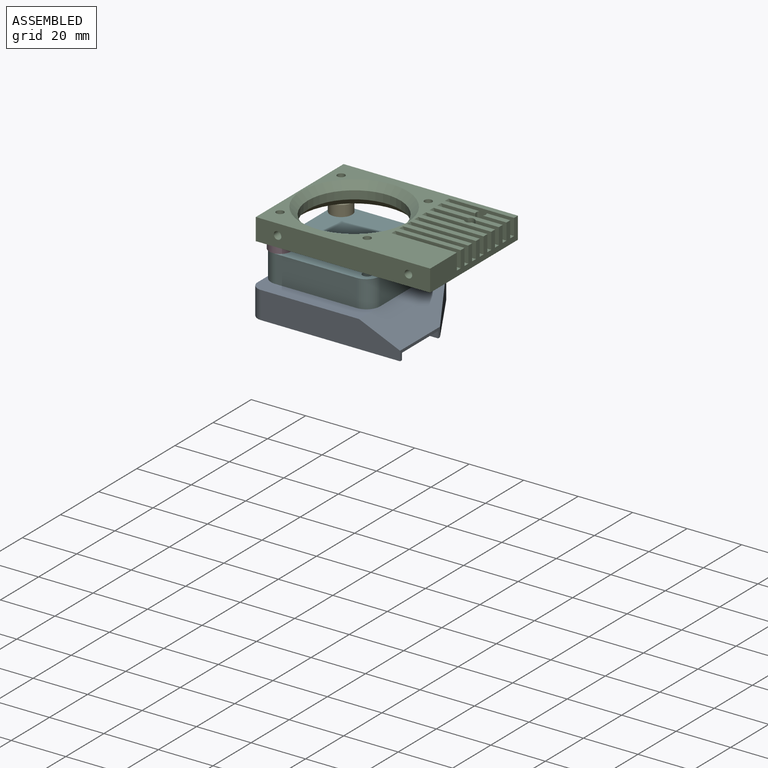
[diagram: assembled view]
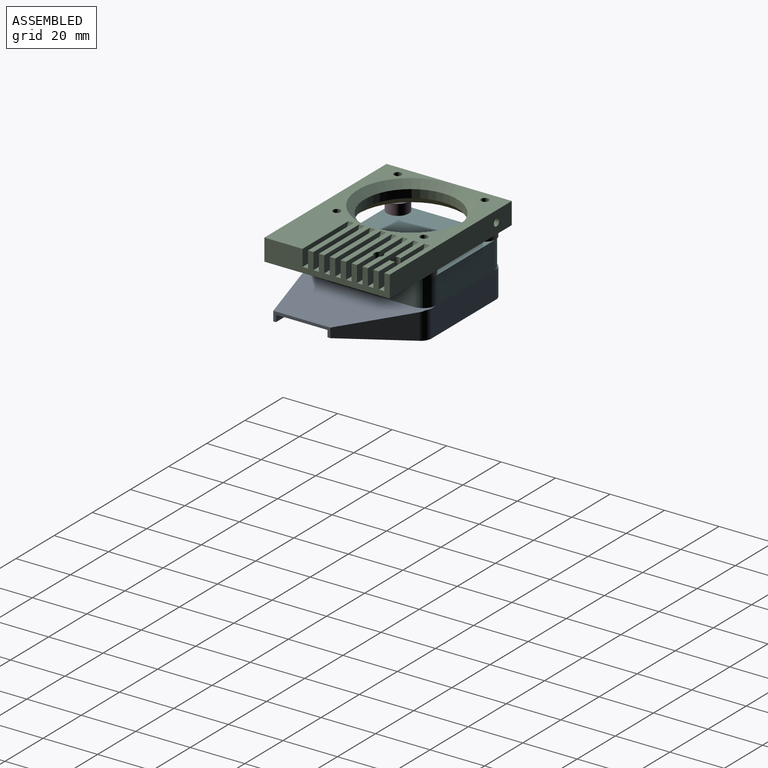
[diagram: assembled view, second angle]
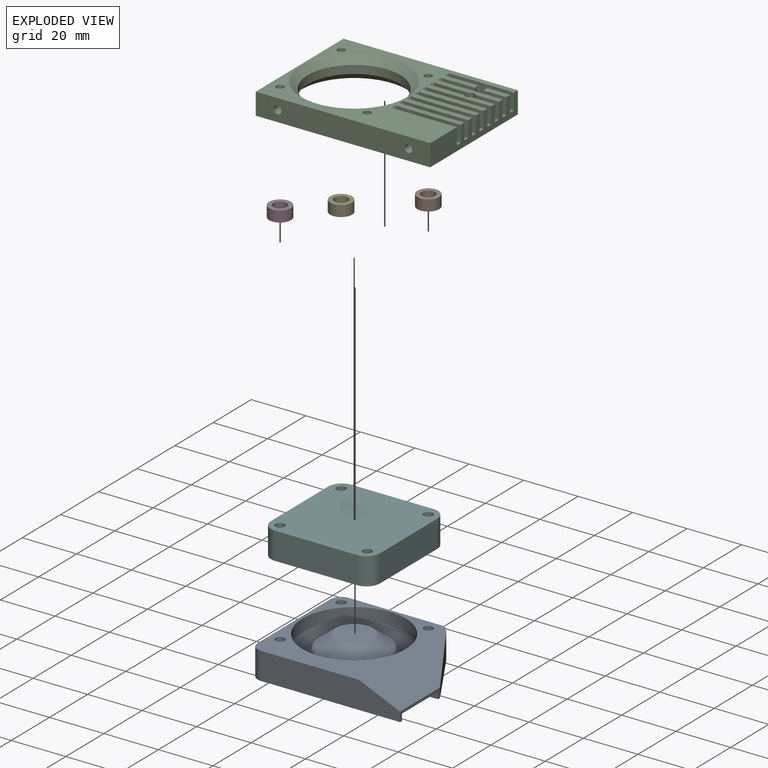
[diagram: exploded view]
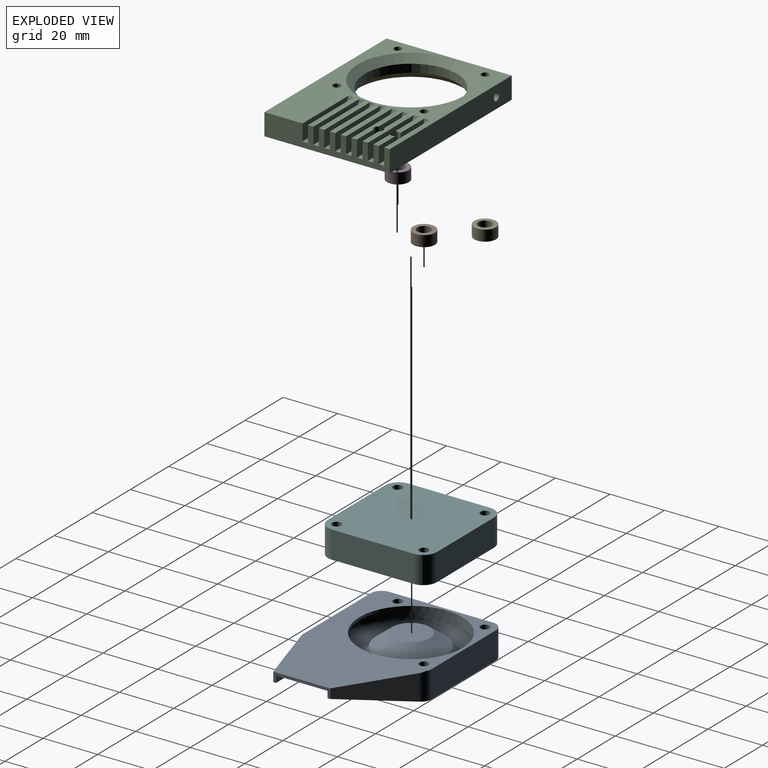
[diagram: exploded view, second angle]
ASSEMBLY  parts=6 mates=5
PART A: 43 faces, bbox 65x55.8x10.9 mm
  f0: cylinder r=1.7mm len=3.4mm, axis (0,0,1), area 19.2mm2, adj f6,f38
  f1: cylinder r=1.7mm len=3.4mm, axis (0,0,1), area 19.2mm2, adj f6,f37
  f2: cylinder r=1.7mm len=3.4mm, axis (0,0,1), area 19.2mm2, adj f6,f36
  f3: plane 20.9x3.5mm, normal (1,0,0), area 26.8mm2, adj f4,f5,f8,f13,f26,f27,f29
  f4: plane 55.06x46mm, normal (0,0,-1), area 2100.1mm2, adj f3,f5,f7,f8,f12,f27,f28,f29
  f5: plane 23.16x13.89mm, normal (0.86,0.51,0), area 175.5mm2, adj f3,f4,f13,f41
  f6: plane 46x40mm, normal (0,0,1), area 671.4mm2, adj f0,f1,f2,f7,f8,f12,f13,f16
  f7: plane 33.74x10mm, normal (0,1,0), area 337.4mm2, adj f4,f6,f40,f41
  f8: plane 51.06x10mm, normal (0,-1,0), area 461.7mm2, adj f3,f4,f6,f13,f21,f39
  f9: plane 37.82x30.19mm, normal (0,0,-1), area 232.2mm2, adj f11,f15,f16,f18,f19
  f10: plane 26.42x25.86mm, normal (0,0,1), area 292.2mm2, adj f22,f23,f25,f28,f29
  f11: plane 35.1x15.29mm, normal (-0.4,0,-0.92), area 459.9mm2, adj f9,f14,f15,f18,f22,f23,f26
  f12: plane 38x10mm, normal (-1,0,0), area 380mm2, adj f4,f6,f39,f40
  f13: plane 45.35x15.12mm, normal (0.4,0,0.92), area 548.3mm2, adj f3,f5,f6,f8,f21,f41
  f14: plane 7.13x4.65mm, normal (-0.86,-0.51,0), area 2.2mm2, adj f11,f22
  f15: plane 19.39x6mm, normal (0,1,0), area 85.8mm2, adj f9,f11,f19,f23
  f16: cylinder r=19mm len=38mm, axis (0,0,1), area 119.4mm2, adj f6,f9,f19,f20
  f17: plane 13.76x13.76mm, normal (0,0,1), area 148.8mm2, adj f42
  f18: cylinder r=43.21mm len=12.7mm, axis (0,0,-1), area 32.1mm2, adj f9,f11,f20,f22
  f19: cylinder r=50.82mm len=20.38mm, axis (0,0,-1), area 67.5mm2, adj f9,f15,f16,f20,f23
  f20: cylinder r=19mm len=34.9mm, axis (0,0,-1), area 193.5mm2, adj f16,f18,f19,f24
  f21: cylinder r=50.82mm len=0mm, axis (0,0,-1), area 0mm2, adj f8,f13
  f22: torus R=38.21mm, axis (0,0,1), area 181mm2, adj f10,f11,f14,f18,f24,f25,f26,f29
  f23: torus R=45.82mm, axis (0,0,1), area 255.7mm2, adj f10,f11,f15,f19,f24,f25,f26,f28
  f24: torus R=14mm, axis (0,0,1), area 346.9mm2, adj f20,f22,f23,f25
  f25: torus R=18.5mm, axis (0,0,1), area 580mm2, adj f10,f22,f23,f24,f42
  f26: plane 18.9x8mm, normal (0,0,-1), area 16.7mm2, adj f3,f11,f22,f23,f27,f28,f29
  f27: plane 8x2.45mm, normal (0,1,0), area 19.6mm2, adj f3,f4,f26,f28
  f28: plane 18.96x2.52mm, normal (1,0,0), area 21.9mm2, adj f4,f10,f23,f26,f27,f29
  f29: plane 8.26x2.71mm, normal (0,-1,0), area 11.5mm2, adj f3,f4,f10,f22,f26,f28
  f30: cylinder r=3mm len=8mm, axis (0,0,-1), area 150.8mm2, adj f4,f31
  f31: plane 6x6mm, normal (0,0,-1), area 28.3mm2, adj f30
  f32: cylinder r=3mm len=8mm, axis (0,0,-1), area 150.8mm2, adj f4,f33
  f33: plane 6x6mm, normal (0,0,-1), area 28.3mm2, adj f32
  f34: cylinder r=3mm len=8mm, axis (0,0,-1), area 150.8mm2, adj f4,f35
  f35: plane 6x6mm, normal (0,0,-1), area 28.3mm2, adj f34
  f36: plane 3.4x3.4mm, normal (0,0,1), area 9.1mm2, adj f2
  f37: plane 3.4x3.4mm, normal (0,0,1), area 9.1mm2, adj f1
  f38: plane 3.4x3.4mm, normal (0,0,1), area 9.1mm2, adj f0
  f39: cylinder r=4mm len=10mm, axis (0,0,-1), area 62.8mm2, adj f4,f6,f8,f12
  f40: cylinder r=4mm len=10mm, axis (0,0,1), area 62.8mm2, adj f4,f6,f7,f12
  f41: cylinder r=4mm len=10mm, axis (0,0,-1), area 40.8mm2, adj f4,f5,f6,f7,f13
  f42: cone r=6.88mm half-angle=52.2deg, axis (0,0,-1), area 451.8mm2, adj f17,f25
PART B: 4 faces, bbox 8x8x4 mm
  f0: cylinder r=2.5mm len=5mm, axis (0,0,-1), area 62.8mm2, adj f2,f3
  f1: cylinder r=4mm len=8mm, axis (0,0,-1), area 100.5mm2, adj f2,f3
  f2: plane 8x8mm, normal (0,0,1), area 30.6mm2, adj f0,f1
  f3: plane 8x8mm, normal (0,0,-1), area 30.6mm2, adj f0,f1
PART C: 63 faces, bbox 64x46x8 mm
  f0: plane 24x6mm, normal (0,-1,0), area 132mm2, adj f3,f29,f40,f48
  f1: plane 24x6mm, normal (0,1,0), area 132mm2, adj f3,f29,f39,f49
  f2: plane 24x6mm, normal (0,-1,0), area 132mm2, adj f3,f29,f39,f49
  f3: plane 46x8mm, normal (1,0,0), area 272mm2, adj f0,f1,f2,f4,f8,f9,f13,f14
  f4: plane 8.63x6mm, normal (0,1,0), area 51.8mm2, adj f3,f7,f29,f41
  f5: plane 12.63x6mm, normal (0,1,0), area 63.7mm2, adj f7,f29,f42,f50
  f6: plane 12.63x6mm, normal (0,-1,0), area 63.7mm2, adj f7,f29,f42,f50
  f7: cylinder r=1.7mm len=8mm, axis (0,0,-1), area 59.8mm2, adj f4,f5,f6,f8,f29,f30,f41,f42
  f8: plane 8.63x6mm, normal (0,-1,0), area 51.8mm2, adj f3,f7,f29,f41
  f9: plane 24x6mm, normal (0,1,0), area 132mm2, adj f3,f29,f35,f43
  f10: plane 12.63x6mm, normal (0,-1,0), area 63.7mm2, adj f11,f29,f35,f43
  f11: cylinder r=1.7mm len=8mm, axis (0,0,-1), area 47mm2, adj f10,f12,f29,f30,f31,f32,f33,f34
  f12: plane 12.63x6mm, normal (0,1,0), area 63.7mm2, adj f11,f29,f34,f44
  f13: plane 24x6mm, normal (0,-1,0), area 132mm2, adj f3,f29,f34,f44
  f14: plane 64x8mm, normal (0,1,0), area 505.8mm2, adj f3,f15,f29,f30,f57
  f15: plane 46x8mm, normal (-1,0,0), area 368mm2, adj f14,f16,f29,f30
  f16: plane 64x8mm, normal (0,-1,0), area 499.7mm2, adj f3,f15,f29,f30,f59,f61
  f17: plane 24x6mm, normal (0,1,0), area 132mm2, adj f3,f29,f37,f45
  f18: plane 24x6mm, normal (0,-1,0), area 132mm2, adj f3,f29,f37,f45
  f19: plane 24x6mm, normal (0,1,0), area 132mm2, adj f3,f29,f36,f46
  f20: plane 24x6mm, normal (0,-1,0), area 132mm2, adj f3,f29,f36,f46
  f21: plane 24x6mm, normal (0,1,0), area 132mm2, adj f3,f29,f38,f47
  f22: plane 24x6mm, normal (0,-1,0), area 132mm2, adj f3,f29,f38,f47
  f23: plane 24x6mm, normal (0,1,0), area 132mm2, adj f3,f29,f40,f48
  f24: cylinder r=1.4mm len=7.4mm, axis (0,0,-1), area 65.1mm2, adj f29,f55
  f25: cylinder r=1.4mm len=7.4mm, axis (0,0,-1), area 65.1mm2, adj f29,f56
  f26: cylinder r=1.4mm len=7.4mm, axis (0,0,-1), area 65.1mm2, adj f29,f53
  f27: cylinder r=1.4mm len=7.4mm, axis (0,0,-1), area 65.1mm2, adj f29,f54
  f28: cylinder r=17mm len=34mm, axis (0,0,-1), area 320.4mm2, adj f51,f52
  f29: plane 64x46mm, normal (0,0,1), area 1314.9mm2, adj f0,f1,f2,f3,f4,f5,f6,f7
  f30: plane 64x46mm, normal (0,0,-1), area 1681mm2, adj f3,f7,f11,f14,f15,f16,f52,f53
  f31: plane 8.63x6mm, normal (0,-1,0), area 51.8mm2, adj f3,f11,f33,f35
  f32: plane 8.63x6mm, normal (0,1,0), area 51.8mm2, adj f3,f11,f33,f34
  f33: plane 8.63x2mm, normal (0,0,1), area 16.8mm2, adj f3,f11,f31,f32
  f34: plane 16.25x2mm, normal (0,0,1), area 31.2mm2, adj f3,f11,f12,f13,f32,f44
  f35: plane 16.25x2mm, normal (0,0,1), area 31.2mm2, adj f3,f9,f10,f11,f31,f43
  f36: plane 16.25x2mm, normal (0,0,1), area 32.5mm2, adj f3,f19,f20,f46
  f37: plane 16.25x2mm, normal (0,0,1), area 32.5mm2, adj f3,f17,f18,f45
  f38: plane 16.25x2mm, normal (0,0,1), area 32.5mm2, adj f3,f21,f22,f47
  f39: plane 16.25x2mm, normal (0,0,1), area 32.5mm2, adj f1,f2,f3,f49
  f40: plane 16.25x2mm, normal (0,0,1), area 32.5mm2, adj f0,f3,f23,f48
  f41: plane 8.63x2mm, normal (0,0,1), area 16.8mm2, adj f3,f4,f7,f8
  f42: plane 4.88x2mm, normal (0,0,1), area 9.3mm2, adj f5,f6,f7,f50
  f43: cylinder r=8mm len=7.75mm, axis (0,-1,0), area 21.1mm2, adj f9,f10,f29,f35
  f44: cylinder r=8mm len=7.75mm, axis (0,-1,0), area 21.1mm2, adj f12,f13,f29,f34
  f45: cylinder r=8mm len=7.75mm, axis (0,-1,0), area 21.1mm2, adj f17,f18,f29,f37
  f46: cylinder r=8mm len=7.75mm, axis (0,-1,0), area 21.1mm2, adj f19,f20,f29,f36
  f47: cylinder r=8mm len=7.75mm, axis (0,-1,0), area 21.1mm2, adj f21,f22,f29,f38
  f48: cylinder r=8mm len=7.75mm, axis (0,-1,0), area 21.1mm2, adj f0,f23,f29,f40
  f49: cylinder r=8mm len=7.75mm, axis (0,-1,0), area 21.1mm2, adj f1,f2,f29,f39
  f50: cylinder r=8mm len=7.75mm, axis (0,-1,0), area 21.1mm2, adj f5,f6,f29,f42
  f51: cone r=17mm half-angle=45deg, axis (0,0,1), area 405.4mm2, adj f28,f29
  f52: cone r=19.5mm half-angle=45deg, axis (0,0,-1), area 405.4mm2, adj f28,f30
  f53: cone r=2mm half-angle=45deg, axis (0,0,-1), area 9.1mm2, adj f26,f30
  f54: cone r=2mm half-angle=45deg, axis (0,0,-1), area 9.1mm2, adj f27,f30
  f55: cone r=2mm half-angle=45deg, axis (0,0,-1), area 9.1mm2, adj f24,f30
  f56: cone r=2mm half-angle=45deg, axis (0,0,-1), area 9.1mm2, adj f25,f30
  f57: cylinder r=1.4mm len=8.5mm, axis (0,1,0), area 74.8mm2, adj f14,f58
  f58: plane 2.8x2.8mm, normal (0,1,0), area 6.2mm2, adj f57
  f59: cylinder r=1.4mm len=8.5mm, axis (0,-1,0), area 74.8mm2, adj f16,f60
  f60: plane 2.8x2.8mm, normal (0,-1,0), area 6.2mm2, adj f59
  f61: cylinder r=1.4mm len=8.5mm, axis (0,-1,0), area 74.8mm2, adj f16,f62
  f62: plane 2.8x2.8mm, normal (0,-1,0), area 6.2mm2, adj f61
PART D: same geometry as B
PART E: same geometry as B
PART F: 14 faces, bbox 40x40x10 mm
  f0: plane 30x10mm, normal (1,0,0), area 300mm2, adj f1,f11,f12,f13
  f1: cylinder r=5mm len=10mm, axis (0,0,-1), area 78.5mm2, adj f0,f2,f12,f13
  f2: plane 30x10mm, normal (0,1,0), area 300mm2, adj f1,f3,f12,f13
  f3: cylinder r=5mm len=10mm, axis (0,0,-1), area 78.5mm2, adj f2,f4,f12,f13
  f4: plane 30x10mm, normal (-1,0,0), area 300mm2, adj f3,f5,f12,f13
  f5: cylinder r=5mm len=10mm, axis (0,0,-1), area 78.5mm2, adj f4,f6,f12,f13
  f6: plane 30x10mm, normal (0,-1,0), area 300mm2, adj f5,f11,f12,f13
  f7: cylinder r=1.7mm len=10mm, axis (0,0,-1), area 106.8mm2, adj f12,f13
  f8: cylinder r=1.7mm len=10mm, axis (0,0,-1), area 106.8mm2, adj f12,f13
  f9: cylinder r=1.7mm len=10mm, axis (0,0,-1), area 106.8mm2, adj f12,f13
  f10: cylinder r=1.7mm len=10mm, axis (0,0,-1), area 106.8mm2, adj f12,f13
  f11: cylinder r=5mm len=10mm, axis (0,0,-1), area 78.5mm2, adj f0,f6,f12,f13
  f12: plane 40x40mm, normal (0,0,1), area 1542.2mm2, adj f0,f1,f2,f3,f4,f5,f6,f7
  f13: plane 40x40mm, normal (0,0,-1), area 1542.2mm2, adj f0,f1,f2,f3,f4,f5,f6,f7
PLACE A t=(-5.14,-18.59,8.29)mm
PLACE B t=(-9.14,17.41,28.29)mm
PLACE C t=(-45.14,-21.59,32.29)mm
PLACE D t=(-41.14,-14.59,28.29)mm
PLACE E t=(-41.14,17.41,28.29)mm
PLACE F t=(-45.14,-18.59,18.29)mm
MATE fastened B.f0 <-> F.f8  axis (0,0,-1) through (-9.14,17.41,28.29)mm
MATE fastened E.f0 <-> F.f7  axis (0,0,-1) through (-41.14,17.41,28.29)mm
MATE fastened F.f9 <-> A.f0  axis (0,0,-1) through (-41.14,-14.59,18.29)mm
MATE fastened D.f0 <-> F.f9  axis (0,0,-1) through (-41.14,-14.59,28.29)mm
MATE fastened C.f27 <-> D.f1  axis (0,0,-1) through (-41.14,-14.59,32.29)mm
